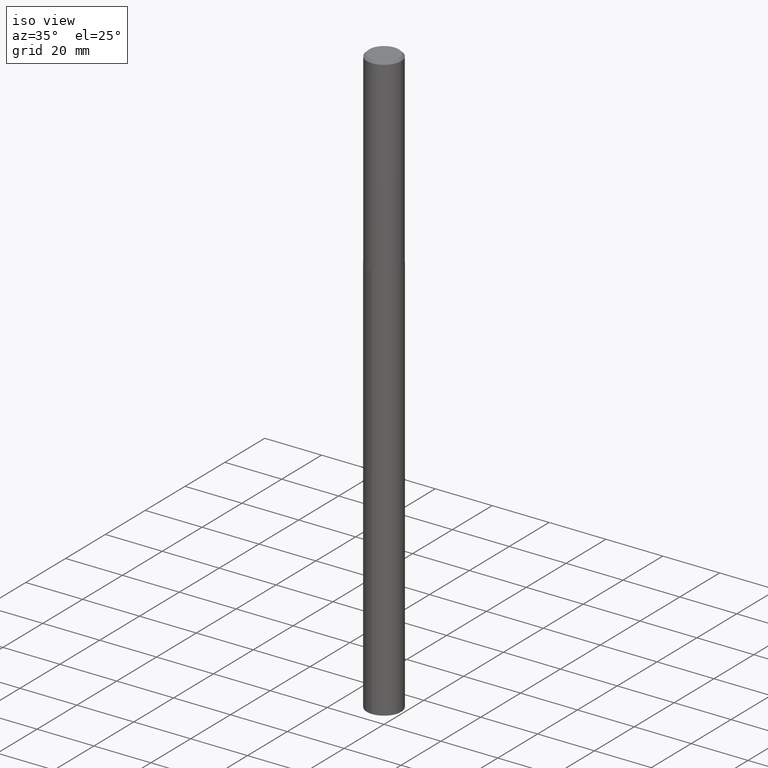
[diagram: clean part render]
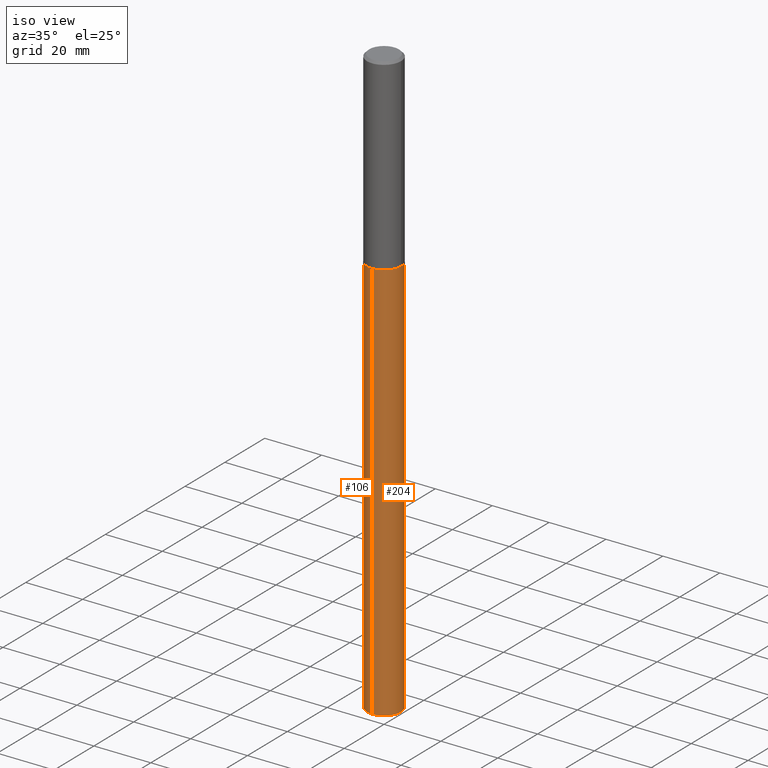
[diagram: same view with one multi-face feature highlighted, each face labeled with its STEP entity id]
A machine part, iso view. The highlighted faces form ONE feature: a constant-radius fillet chain: 2 tangent blend faces with common blend radius 5.9995 mm. The faces share edges in the B-rep.
Their STEP definitions:
[1] entity #204 (Cylinder):
#5 = VERTEX_POINT ( 'NONE', #192 ) ;
#20 = DIRECTION ( 'NONE',  ( -6.982962677686265922E-15, -1.000000000000000000, 4.626330217890369336E-15 ) ) ;
#23 = EDGE_CURVE ( 'NONE', #63, #5, #111, .T. ) ;
#43 = DIRECTION ( 'NONE',  ( -2.445577382923198506E-29, 3.491325850774436813E-15, 1.000000000000000000 ) ) ;
#49 = DIRECTION ( 'NONE',  ( -2.445577382923198506E-29, 3.491325850774436813E-15, 1.000000000000000000 ) ) ;
#58 = ORIENTED_EDGE ( 'NONE', *, *, #23, .F. ) ;
#63 = VERTEX_POINT ( 'NONE', #166 ) ;
#97 = DIRECTION ( 'NONE',  ( -6.982962677686265922E-15, -1.000000000000000000, 4.626330217890369336E-15 ) ) ;
#111 = CIRCLE ( 'NONE', #173, 0.2361999999999999933 ) ;
#113 = CARTESIAN_POINT ( 'NONE',  ( -1.649375784469295957E-15, -0.2362000000000285538, -8.174958345659749881 ) ) ;
#121 = LINE ( 'NONE', #387, #348 ) ;
#130 = CARTESIAN_POINT ( 'NONE',  ( 6.354795239752696204E-29, -9.072963407117799646E-15, -2.598599999999999799 ) ) ;
#141 = DIRECTION ( 'NONE',  ( -2.445577382923198787E-29, 3.491325850774436813E-15, 1.000000000000000000 ) ) ;
#155 = ORIENTED_EDGE ( 'NONE', *, *, #371, .T. ) ;
#156 = DIRECTION ( 'NONE',  ( -2.445577382923198787E-29, 3.491325850774436813E-15, 1.000000000000000000 ) ) ;
#166 = CARTESIAN_POINT ( 'NONE',  ( -1.649375784469432430E-15, -0.2362000000000090694, -2.598599999999998911 ) ) ;
#173 = AXIS2_PLACEMENT_3D ( 'NONE', #130, #43, #97 ) ;
#187 = VERTEX_POINT ( 'NONE', #379 ) ;
#192 = CARTESIAN_POINT ( 'NONE',  ( 1.678301941865557554E-15, 0.2361999999999909450, -2.598600000000001131 ) ) ;
#198 = LINE ( 'NONE', #284, #199 ) ;
#199 = VECTOR ( 'NONE', #141, 39.37007874015748143 ) ;
#204 = ADVANCED_FACE ( 'NONE', ( #384 ), #226, .T. ) ;
#205 = AXIS2_PLACEMENT_3D ( 'NONE', #316, #49, #282 ) ;
#226 = CYLINDRICAL_SURFACE ( 'NONE', #205, 0.2361999999999999933 ) ;
#231 = CARTESIAN_POINT ( 'NONE',  ( 1.999221108897321029E-28, -2.854184745250146313E-14, -8.174958345659751657 ) ) ;
#237 = VERTEX_POINT ( 'NONE', #113 ) ;
#244 = EDGE_CURVE ( 'NONE', #237, #187, #248, .T. ) ;
#248 = CIRCLE ( 'NONE', #318, 0.2361999999999999933 ) ;
#282 = DIRECTION ( 'NONE',  ( -6.982962677686265922E-15, -1.000000000000000000, 4.626330217890369336E-15 ) ) ;
#284 = CARTESIAN_POINT ( 'NONE',  ( -1.649375784469432430E-15, -0.2362000000000090694, -2.598599999999998911 ) ) ;
#303 = ORIENTED_EDGE ( 'NONE', *, *, #244, .T. ) ;
#316 = CARTESIAN_POINT ( 'NONE',  ( 6.354795239752696204E-29, -9.072963407117799646E-15, -2.598599999999999799 ) ) ;
#318 = AXIS2_PLACEMENT_3D ( 'NONE', #231, #347, #20 ) ;
#332 = ORIENTED_EDGE ( 'NONE', *, *, #338, .F. ) ;
#338 = EDGE_CURVE ( 'NONE', #237, #63, #198, .T. ) ;
#347 = DIRECTION ( 'NONE',  ( -2.445577382923198506E-29, 3.491325850774436813E-15, 1.000000000000000000 ) ) ;
#348 = VECTOR ( 'NONE', #156, 39.37007874015748143 ) ;
#371 = EDGE_CURVE ( 'NONE', #187, #5, #121, .T. ) ;
#379 = CARTESIAN_POINT ( 'NONE',  ( 1.678301941865556370E-15, 0.2361999999999714606, -8.174958345659753434 ) ) ;
#384 = FACE_OUTER_BOUND ( 'NONE', #388, .T. ) ;
#387 = CARTESIAN_POINT ( 'NONE',  ( 1.678301941865419897E-15, 0.2361999999999909172, -2.598600000000001131 ) ) ;
#388 = EDGE_LOOP ( 'NONE', ( #303, #155, #58, #332 ) ) ;
[2] entity #106 (Cylinder):
#5 = VERTEX_POINT ( 'NONE', #192 ) ;
#9 = AXIS2_PLACEMENT_3D ( 'NONE', #100, #135, #102 ) ;
#12 = CARTESIAN_POINT ( 'NONE',  ( 6.354795239752696204E-29, -9.072963407117799646E-15, -2.598599999999999799 ) ) ;
#24 = CARTESIAN_POINT ( 'NONE',  ( 6.354795239752696204E-29, -9.072963407117799646E-15, -2.598599999999999799 ) ) ;
#26 = ORIENTED_EDGE ( 'NONE', *, *, #338, .T. ) ;
#63 = VERTEX_POINT ( 'NONE', #166 ) ;
#74 = CYLINDRICAL_SURFACE ( 'NONE', #271, 0.2361999999999999933 ) ;
#75 = AXIS2_PLACEMENT_3D ( 'NONE', #24, #382, #107 ) ;
#100 = CARTESIAN_POINT ( 'NONE',  ( 1.999221108897321029E-28, -2.854184745250146313E-14, -8.174958345659751657 ) ) ;
#102 = DIRECTION ( 'NONE',  ( -6.982962677686265922E-15, -1.000000000000000000, 4.626330217890369336E-15 ) ) ;
#106 = ADVANCED_FACE ( 'NONE', ( #279 ), #74, .T. ) ;
#107 = DIRECTION ( 'NONE',  ( -6.982962677686265922E-15, -1.000000000000000000, 4.626330217890369336E-15 ) ) ;
#113 = CARTESIAN_POINT ( 'NONE',  ( -1.649375784469295957E-15, -0.2362000000000285538, -8.174958345659749881 ) ) ;
#121 = LINE ( 'NONE', #387, #348 ) ;
#122 = ORIENTED_EDGE ( 'NONE', *, *, #153, .T. ) ;
#133 = CIRCLE ( 'NONE', #9, 0.2361999999999999933 ) ;
#135 = DIRECTION ( 'NONE',  ( -2.445577382923198506E-29, 3.491325850774436813E-15, 1.000000000000000000 ) ) ;
#141 = DIRECTION ( 'NONE',  ( -2.445577382923198787E-29, 3.491325850774436813E-15, 1.000000000000000000 ) ) ;
#148 = ORIENTED_EDGE ( 'NONE', *, *, #194, .F. ) ;
#150 = EDGE_LOOP ( 'NONE', ( #267, #122, #26, #148 ) ) ;
#153 = EDGE_CURVE ( 'NONE', #187, #237, #133, .T. ) ;
#156 = DIRECTION ( 'NONE',  ( -2.445577382923198787E-29, 3.491325850774436813E-15, 1.000000000000000000 ) ) ;
#166 = CARTESIAN_POINT ( 'NONE',  ( -1.649375784469432430E-15, -0.2362000000000090694, -2.598599999999998911 ) ) ;
#187 = VERTEX_POINT ( 'NONE', #379 ) ;
#192 = CARTESIAN_POINT ( 'NONE',  ( 1.678301941865557554E-15, 0.2361999999999909450, -2.598600000000001131 ) ) ;
#194 = EDGE_CURVE ( 'NONE', #5, #63, #240, .T. ) ;
#198 = LINE ( 'NONE', #284, #199 ) ;
#199 = VECTOR ( 'NONE', #141, 39.37007874015748143 ) ;
#237 = VERTEX_POINT ( 'NONE', #113 ) ;
#240 = CIRCLE ( 'NONE', #75, 0.2361999999999999933 ) ;
#253 = DIRECTION ( 'NONE',  ( -2.445577382923198506E-29, 3.491325850774436813E-15, 1.000000000000000000 ) ) ;
#267 = ORIENTED_EDGE ( 'NONE', *, *, #371, .F. ) ;
#271 = AXIS2_PLACEMENT_3D ( 'NONE', #12, #253, #370 ) ;
#279 = FACE_OUTER_BOUND ( 'NONE', #150, .T. ) ;
#284 = CARTESIAN_POINT ( 'NONE',  ( -1.649375784469432430E-15, -0.2362000000000090694, -2.598599999999998911 ) ) ;
#338 = EDGE_CURVE ( 'NONE', #237, #63, #198, .T. ) ;
#348 = VECTOR ( 'NONE', #156, 39.37007874015748143 ) ;
#370 = DIRECTION ( 'NONE',  ( -6.982962677686265922E-15, -1.000000000000000000, 4.626330217890369336E-15 ) ) ;
#371 = EDGE_CURVE ( 'NONE', #187, #5, #121, .T. ) ;
#379 = CARTESIAN_POINT ( 'NONE',  ( 1.678301941865556370E-15, 0.2361999999999714606, -8.174958345659753434 ) ) ;
#382 = DIRECTION ( 'NONE',  ( -2.445577382923198506E-29, 3.491325850774436813E-15, 1.000000000000000000 ) ) ;
#387 = CARTESIAN_POINT ( 'NONE',  ( 1.678301941865419897E-15, 0.2361999999999909172, -2.598600000000001131 ) ) ;